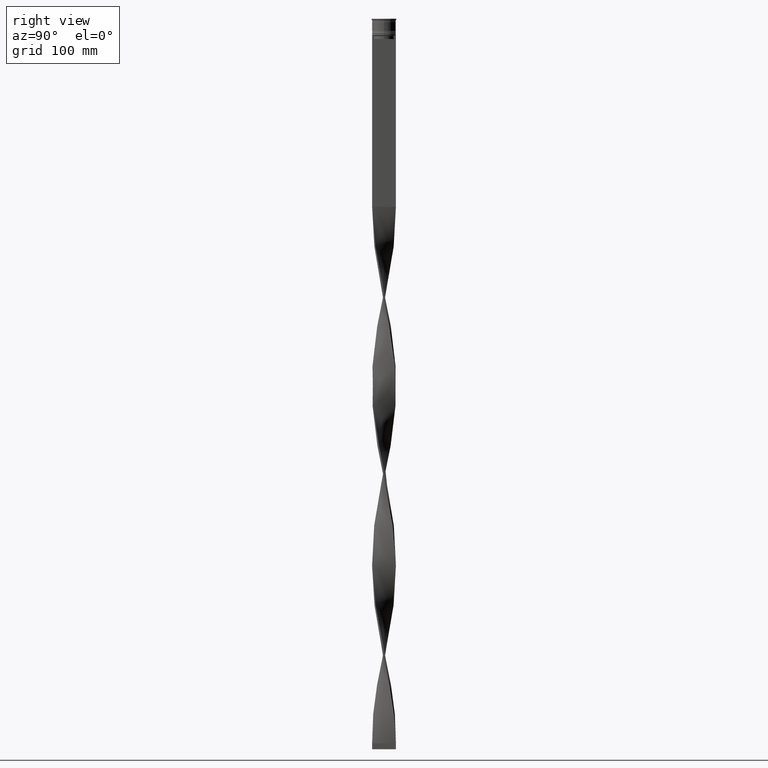
[diagram: clean part render]
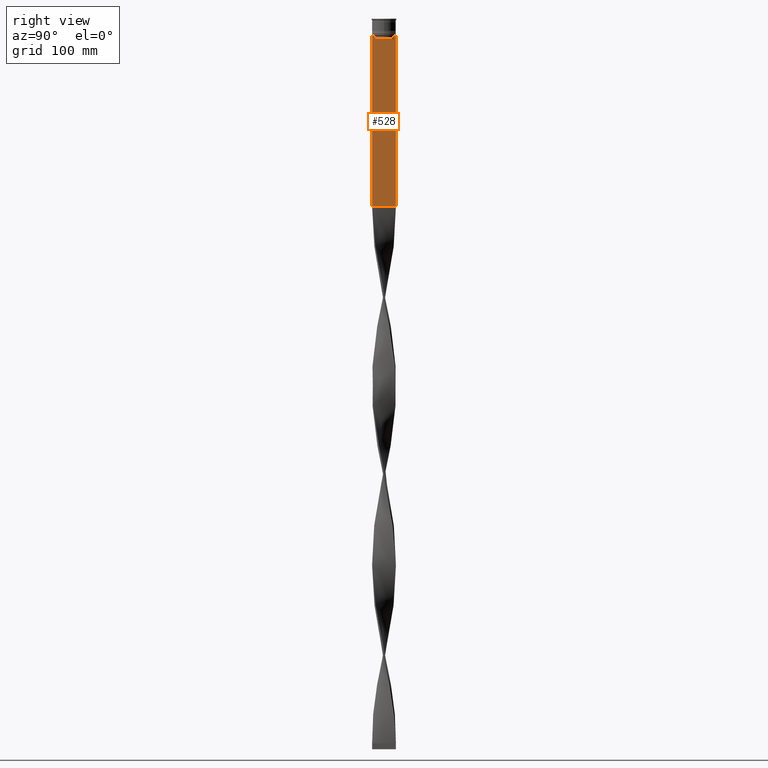
[diagram: same view with one face highlighted and labeled with its STEP entity id]
A machine part, right view. The second image highlights one B-rep face of the part: STEP entity #528.
In plain terms, the highlighted planar face has unit normal (-1, 0, 0).
Its self-contained STEP definition (entity closure, byte-faithful):
#14 = EDGE_CURVE ( 'NONE', #2896, #3254, #4177, .T. ) ;
#26 = VECTOR ( 'NONE', #1526, 1000.000000000000000 ) ;
#193 = ORIENTED_EDGE ( 'NONE', *, *, #14, .F. ) ;
#204 = CARTESIAN_POINT ( 'NONE',  ( 0.7500000000000001110, -8.366450860430608927, -17.00000000000000000 ) ) ;
#249 = EDGE_CURVE ( 'NONE', #3050, #4104, #1028, .T. ) ;
#274 = CARTESIAN_POINT ( 'NONE',  ( 0.7500000000000001110, -8.868342573446296839, -14.00000000000000178 ) ) ;
#280 = VERTEX_POINT ( 'NONE', #2842 ) ;
#311 = CARTESIAN_POINT ( 'NONE',  ( 0.7500000000000001110, 9.871550030263739117, -14.00000000000000178 ) ) ;
#373 = VECTOR ( 'NONE', #1062, 1000.000000000000000 ) ;
#421 = EDGE_CURVE ( 'NONE', #1213, #3050, #1891, .T. ) ;
#491 = CARTESIAN_POINT ( 'NONE',  ( 0.7500000000000001110, -8.366450860430608927, -14.50000000000000000 ) ) ;
#528 = ADVANCED_FACE ( 'NONE', ( #2284 ), #2003, .F. ) ;
#597 = CARTESIAN_POINT ( 'NONE',  ( 0.7500000000000001110, -8.701063080777121428, -14.16668447713511725 ) ) ;
#681 = VECTOR ( 'NONE', #4455, 1000.000000000000000 ) ;
#697 = ORIENTED_EDGE ( 'NONE', *, *, #2739, .T. ) ;
#729 = ORIENTED_EDGE ( 'NONE', *, *, #2856, .T. ) ;
#763 = CARTESIAN_POINT ( 'NONE',  ( 0.7500000000000001110, -10.00000000000000533, -14.00000000000000178 ) ) ;
#856 = LINE ( 'NONE', #763, #1564 ) ;
#876 = DIRECTION ( 'NONE',  ( 0.000000000000000000, 0.000000000000000000, 1.000000000000000000 ) ) ;
#916 = CARTESIAN_POINT ( 'NONE',  ( 0.7500000000000001110, 9.999999999999998224, 6.056171120131581098 ) ) ;
#926 = VERTEX_POINT ( 'NONE', #4115 ) ;
#940 = LINE ( 'NONE', #2329, #4295 ) ;
#968 = CARTESIAN_POINT ( 'NONE',  ( 0.7500000000000001110, -8.868342573446296839, -14.00000000000000178 ) ) ;
#1002 = LINE ( 'NONE', #2428, #681 ) ;
#1028 = LINE ( 'NONE', #1449, #3634 ) ;
#1034 = ORIENTED_EDGE ( 'NONE', *, *, #1550, .T. ) ;
#1041 = VECTOR ( 'NONE', #1177, 1000.000000000000000 ) ;
#1062 = DIRECTION ( 'NONE',  ( 0.000000000000000000, 0.000000000000000000, -1.000000000000000000 ) ) ;
#1155 = EDGE_LOOP ( 'NONE', ( #697, #3879, #729, #1852, #3018, #3173, #1170, #1034, #2987, #2516, #193, #2748 ) ) ;
#1170 = ORIENTED_EDGE ( 'NONE', *, *, #4344, .T. ) ;
#1177 = DIRECTION ( 'NONE',  ( 0.000000000000000000, 0.000000000000000000, -1.000000000000000000 ) ) ;
#1213 = VERTEX_POINT ( 'NONE', #1596 ) ;
#1435 = LINE ( 'NONE', #3899, #4152 ) ;
#1449 = CARTESIAN_POINT ( 'NONE',  ( 0.7500000000000001110, -8.366450860430608927, 0.000000000000000000 ) ) ;
#1511 = CARTESIAN_POINT ( 'NONE',  ( 0.7500000000000001110, 8.701063075415250481, -14.16668448247791545 ) ) ;
#1526 = DIRECTION ( 'NONE',  ( 0.000000000000000000, -1.000000000000000000, 0.000000000000000000 ) ) ;
#1550 = EDGE_CURVE ( 'NONE', #2781, #3676, #1435, .T. ) ;
#1564 = VECTOR ( 'NONE', #2945, 1000.000000000000000 ) ;
#1577 = CARTESIAN_POINT ( 'NONE',  ( 0.7500000000000001110, 9.999999999999998224, -14.00000000000000178 ) ) ;
#1579 = CARTESIAN_POINT ( 'NONE',  ( 0.7500000000000001110, -10.00000000000000533, 6.056171120131581098 ) ) ;
#1596 = CARTESIAN_POINT ( 'NONE',  ( 0.7500000000000001110, 8.366450860430608927, -17.00000000000000000 ) ) ;
#1619 = VERTEX_POINT ( 'NONE', #4233 ) ;
#1661 = EDGE_CURVE ( 'NONE', #3676, #926, #1767, .T. ) ;
#1767 = LINE ( 'NONE', #3174, #373 ) ;
#1852 = ORIENTED_EDGE ( 'NONE', *, *, #421, .T. ) ;
#1891 = LINE ( 'NONE', #2581, #1948 ) ;
#1934 = CARTESIAN_POINT ( 'NONE',  ( 0.7500000000000001110, 8.366450860430608927, 0.000000000000000000 ) ) ;
#1948 = VECTOR ( 'NONE', #2558, 1000.000000000000000 ) ;
#2003 = PLANE ( 'NONE',  #2017 ) ;
#2017 = AXIS2_PLACEMENT_3D ( 'NONE', #1579, #4345, #876 ) ;
#2036 = B_SPLINE_CURVE_WITH_KNOTS ( 'NONE', 3,
 ( #2051, #4077, #597, #274 ),
 .UNSPECIFIED., .F., .F.,
 ( 4, 4 ),
 ( 0.03866293624047253963, 0.03937282246709320616 ),
 .UNSPECIFIED. ) ;
#2051 = CARTESIAN_POINT ( 'NONE',  ( 0.7500000000000001110, -8.366450860430608927, -14.50000000000000000 ) ) ;
#2188 = CARTESIAN_POINT ( 'NONE',  ( 0.7500000000000001110, -10.00000000000000533, -14.00000000000000178 ) ) ;
#2213 = EDGE_CURVE ( 'NONE', #280, #1619, #4256, .T. ) ;
#2258 = VERTEX_POINT ( 'NONE', #968 ) ;
#2284 = FACE_OUTER_BOUND ( 'NONE', #1155, .T. ) ;
#2292 = EDGE_CURVE ( 'NONE', #4104, #2258, #2036, .T. ) ;
#2329 = CARTESIAN_POINT ( 'NONE',  ( 0.7500000000000001110, -10.00000000000000533, -157.9999999999999716 ) ) ;
#2428 = CARTESIAN_POINT ( 'NONE',  ( 0.7500000000000001110, -10.00000000000000533, -14.00000000000000178 ) ) ;
#2516 = ORIENTED_EDGE ( 'NONE', *, *, #3021, .T. ) ;
#2519 = CARTESIAN_POINT ( 'NONE',  ( 0.7500000000000002220, 9.999999999999998224, -157.9999999999999716 ) ) ;
#2558 = DIRECTION ( 'NONE',  ( 0.000000000000000000, -1.000000000000000000, 0.000000000000000000 ) ) ;
#2581 = CARTESIAN_POINT ( 'NONE',  ( 0.7500000000000001110, 8.400000000000003908, -17.00000000000000000 ) ) ;
#2631 = CARTESIAN_POINT ( 'NONE',  ( 0.7500000000000001110, 8.868342573446296839, -14.00000000000000178 ) ) ;
#2739 = EDGE_CURVE ( 'NONE', #4563, #280, #856, .T. ) ;
#2748 = ORIENTED_EDGE ( 'NONE', *, *, #4547, .T. ) ;
#2781 = VERTEX_POINT ( 'NONE', #3640 ) ;
#2806 = CARTESIAN_POINT ( 'NONE',  ( 0.7500000000000001110, -10.00000000000000533, -14.00000000000000178 ) ) ;
#2842 = CARTESIAN_POINT ( 'NONE',  ( 0.7500000000000001110, 8.868342573446296839, -14.00000000000000178 ) ) ;
#2856 = EDGE_CURVE ( 'NONE', #1619, #1213, #4343, .T. ) ;
#2867 = DIRECTION ( 'NONE',  ( -0.000000000000000000, -0.000000000000000000, 1.000000000000000000 ) ) ;
#2896 = VERTEX_POINT ( 'NONE', #1577 ) ;
#2945 = DIRECTION ( 'NONE',  ( 0.000000000000000000, -1.000000000000000000, 0.000000000000000000 ) ) ;
#2987 = ORIENTED_EDGE ( 'NONE', *, *, #1661, .T. ) ;
#3018 = ORIENTED_EDGE ( 'NONE', *, *, #249, .T. ) ;
#3021 = EDGE_CURVE ( 'NONE', #926, #3254, #940, .T. ) ;
#3050 = VERTEX_POINT ( 'NONE', #204 ) ;
#3072 = DIRECTION ( 'NONE',  ( 0.000000000000000000, 0.000000000000000000, -1.000000000000000000 ) ) ;
#3173 = ORIENTED_EDGE ( 'NONE', *, *, #2292, .T. ) ;
#3174 = CARTESIAN_POINT ( 'NONE',  ( 0.7500000000000001110, -10.00000000000000533, 6.056171120131581098 ) ) ;
#3254 = VERTEX_POINT ( 'NONE', #2519 ) ;
#3265 = VECTOR ( 'NONE', #3072, 1000.000000000000000 ) ;
#3541 = DIRECTION ( 'NONE',  ( 0.000000000000000000, -1.000000000000000000, 0.000000000000000000 ) ) ;
#3634 = VECTOR ( 'NONE', #2867, 1000.000000000000000 ) ;
#3640 = CARTESIAN_POINT ( 'NONE',  ( 0.7500000000000001110, -9.871550030263739117, -14.00000000000000178 ) ) ;
#3644 = CARTESIAN_POINT ( 'NONE',  ( 0.7500000000000001110, 8.533766897779925031, -14.33335221373273605 ) ) ;
#3665 = CARTESIAN_POINT ( 'NONE',  ( 0.7500000000000001110, 8.366450860430608927, -14.50000000000000000 ) ) ;
#3676 = VERTEX_POINT ( 'NONE', #2806 ) ;
#3879 = ORIENTED_EDGE ( 'NONE', *, *, #2213, .T. ) ;
#3899 = CARTESIAN_POINT ( 'NONE',  ( 0.7500000000000001110, -10.00000000000000533, -14.00000000000000178 ) ) ;
#4046 = DIRECTION ( 'NONE',  ( 0.000000000000000000, 1.000000000000000000, 0.000000000000000000 ) ) ;
#4077 = CARTESIAN_POINT ( 'NONE',  ( 0.7500000000000001110, -8.533766903463440912, -14.33335220807192023 ) ) ;
#4104 = VERTEX_POINT ( 'NONE', #491 ) ;
#4115 = CARTESIAN_POINT ( 'NONE',  ( 0.7500000000000001110, -10.00000000000000533, -157.9999999999999716 ) ) ;
#4152 = VECTOR ( 'NONE', #3541, 1000.000000000000000 ) ;
#4177 = LINE ( 'NONE', #916, #3265 ) ;
#4233 = CARTESIAN_POINT ( 'NONE',  ( 0.7500000000000001110, 8.366450860430608927, -14.50000000000000000 ) ) ;
#4251 = LINE ( 'NONE', #2188, #26 ) ;
#4256 = B_SPLINE_CURVE_WITH_KNOTS ( 'NONE', 3,
 ( #2631, #1511, #3644, #3665 ),
 .UNSPECIFIED., .F., .F.,
 ( 4, 4 ),
 ( 0.01512225952876174867, 0.01583070519299695222 ),
 .UNSPECIFIED. ) ;
#4295 = VECTOR ( 'NONE', #4046, 1000.000000000000000 ) ;
#4343 = LINE ( 'NONE', #1934, #1041 ) ;
#4344 = EDGE_CURVE ( 'NONE', #2258, #2781, #4251, .T. ) ;
#4345 = DIRECTION ( 'NONE',  ( -1.000000000000000000, 0.000000000000000000, 0.000000000000000000 ) ) ;
#4455 = DIRECTION ( 'NONE',  ( 0.000000000000000000, -1.000000000000000000, 0.000000000000000000 ) ) ;
#4547 = EDGE_CURVE ( 'NONE', #2896, #4563, #1002, .T. ) ;
#4563 = VERTEX_POINT ( 'NONE', #311 ) ;